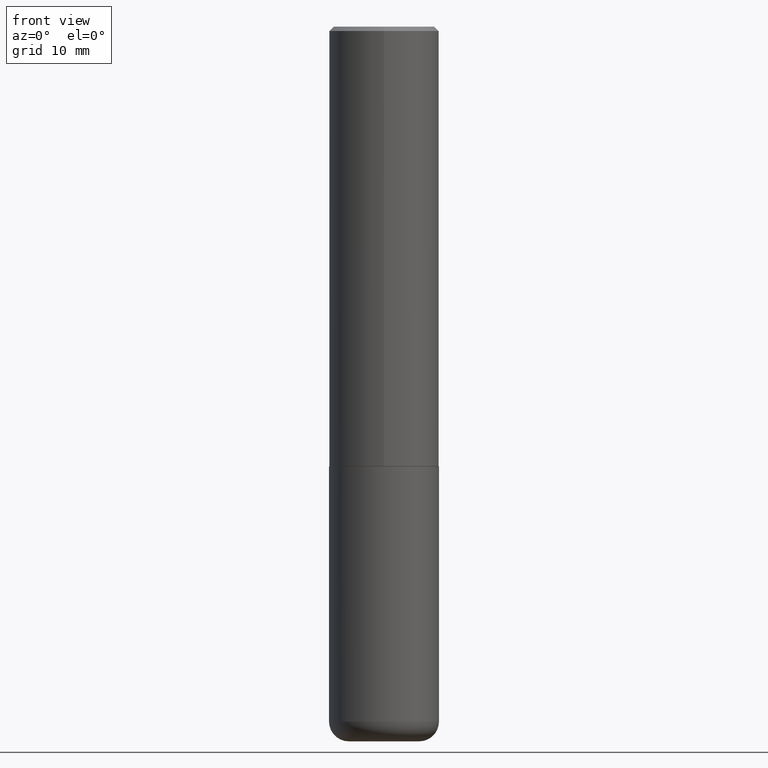
[diagram: clean part render]
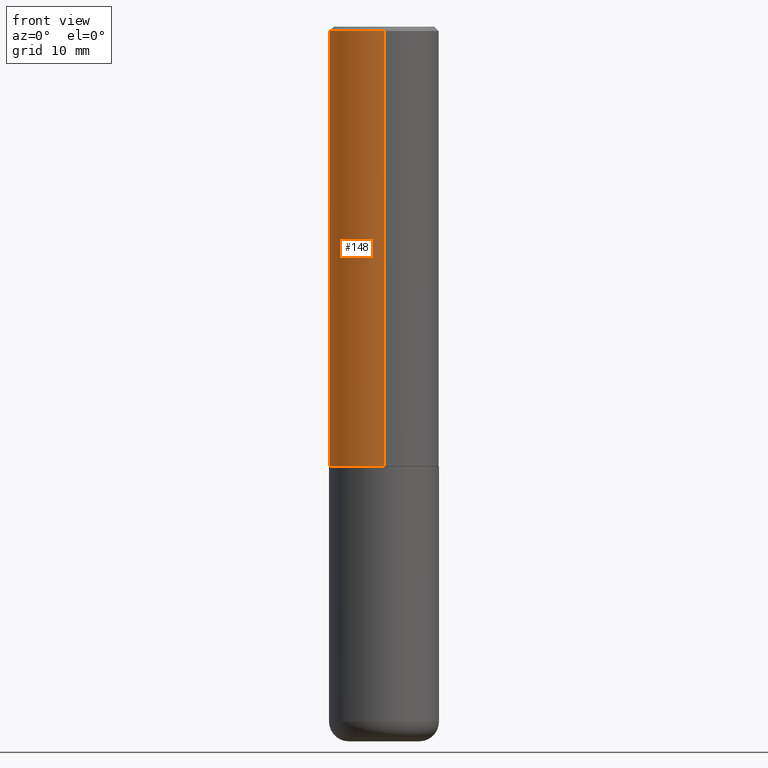
[diagram: same view with one face highlighted and labeled with its STEP entity id]
A machine part, front view. The second image highlights one B-rep face of the part: STEP entity #148.
In plain terms, the highlighted cylindrical surface (partial cylindrical patch) has radius 6.35 mm, axis along (-0, 0, 1).
Its self-contained STEP definition (entity closure, byte-faithful):
#2 = EDGE_CURVE ( 'NONE', #13, #339, #274, .T. ) ;
#9 = CARTESIAN_POINT ( 'NONE',  ( 1.776356839400276103E-15, 0.2499999999999932276, -1.999000000000000776 ) ) ;
#13 = VERTEX_POINT ( 'NONE', #133 ) ;
#15 = DIRECTION ( 'NONE',  ( -2.443621766204130368E-29, 3.494126405222933371E-15, 1.000000000000000000 ) ) ;
#39 = CARTESIAN_POINT ( 'NONE',  ( -1.745740669421519346E-15, -0.2500000000000072164, -1.998999999999999000 ) ) ;
#55 = LINE ( 'NONE', #347, #227 ) ;
#78 = ORIENTED_EDGE ( 'NONE', *, *, #376, .T. ) ;
#79 = EDGE_CURVE ( 'NONE', #247, #13, #196, .T. ) ;
#86 = AXIS2_PLACEMENT_3D ( 'NONE', #130, #261, #389 ) ;
#102 = ORIENTED_EDGE ( 'NONE', *, *, #79, .F. ) ;
#115 = DIRECTION ( 'NONE',  ( -6.982962677686266711E-15, -1.000000000000000000, 3.278217592397113101E-15 ) ) ;
#126 = CARTESIAN_POINT ( 'NONE',  ( 0.000000000000000000, 0.000000000000000000, 0.000000000000000000 ) ) ;
#130 = CARTESIAN_POINT ( 'NONE',  ( 4.887243532408272857E-31, -6.988252810445882815E-17, -0.02000000000000004552 ) ) ;
#133 = CARTESIAN_POINT ( 'NONE',  ( 1.745740669421567269E-15, 0.2499999999999999722, -0.02000000000000092329 ) ) ;
#141 = ORIENTED_EDGE ( 'NONE', *, *, #2, .F. ) ;
#145 = CARTESIAN_POINT ( 'NONE',  ( -1.715124499442882496E-15, -0.2500000000000001110, -0.01999999999999917122 ) ) ;
#148 = ADVANCED_FACE ( 'NONE', ( #409 ), #226, .T. ) ;
#168 = VECTOR ( 'NONE', #411, 39.37007874015748143 ) ;
#173 = EDGE_LOOP ( 'NONE', ( #102, #78, #245, #141 ) ) ;
#178 = DIRECTION ( 'NONE',  ( -2.443621766204130648E-29, 3.494126405222933371E-15, 1.000000000000000000 ) ) ;
#194 = DIRECTION ( 'NONE',  ( -2.443621766204130368E-29, 3.494126405222933371E-15, 1.000000000000000000 ) ) ;
#196 = LINE ( 'NONE', #297, #168 ) ;
#207 = VERTEX_POINT ( 'NONE', #39 ) ;
#226 = CYLINDRICAL_SURFACE ( 'NONE', #240, 0.2500000000000001110 ) ;
#227 = VECTOR ( 'NONE', #178, 39.37007874015748143 ) ;
#240 = AXIS2_PLACEMENT_3D ( 'NONE', #126, #194, #381 ) ;
#245 = ORIENTED_EDGE ( 'NONE', *, *, #345, .T. ) ;
#247 = VERTEX_POINT ( 'NONE', #9 ) ;
#249 = CARTESIAN_POINT ( 'NONE',  ( 4.884799910642056120E-29, -6.984758684040643933E-15, -1.998999999999999888 ) ) ;
#261 = DIRECTION ( 'NONE',  ( -2.443621766204130368E-29, 3.494126405222933371E-15, 1.000000000000000000 ) ) ;
#274 = CIRCLE ( 'NONE', #86, 0.2500000000000000555 ) ;
#275 = CIRCLE ( 'NONE', #363, 0.2500000000000002220 ) ;
#297 = CARTESIAN_POINT ( 'NONE',  ( 1.776356839400251254E-15, 0.2500000000000001110, -8.735316013057337372E-16 ) ) ;
#339 = VERTEX_POINT ( 'NONE', #145 ) ;
#345 = EDGE_CURVE ( 'NONE', #207, #339, #55, .T. ) ;
#347 = CARTESIAN_POINT ( 'NONE',  ( -1.745740669421567467E-15, -0.2500000000000001110, 8.735316013057337372E-16 ) ) ;
#363 = AXIS2_PLACEMENT_3D ( 'NONE', #249, #15, #115 ) ;
#376 = EDGE_CURVE ( 'NONE', #247, #207, #275, .T. ) ;
#381 = DIRECTION ( 'NONE',  ( -6.982962677686266711E-15, -1.000000000000000000, 3.494126405222933371E-15 ) ) ;
#389 = DIRECTION ( 'NONE',  ( -6.982962677686265133E-15, -1.000000000000000000, 3.500180241882336472E-15 ) ) ;
#409 = FACE_OUTER_BOUND ( 'NONE', #173, .T. ) ;
#411 = DIRECTION ( 'NONE',  ( -2.443621766204130648E-29, 3.494126405222933371E-15, 1.000000000000000000 ) ) ;